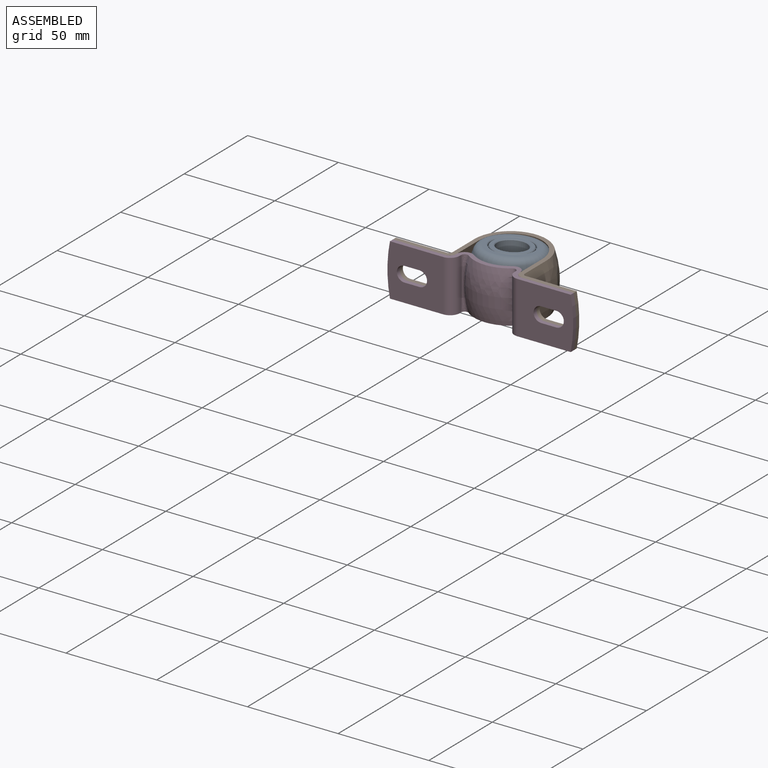
[diagram: assembled view]
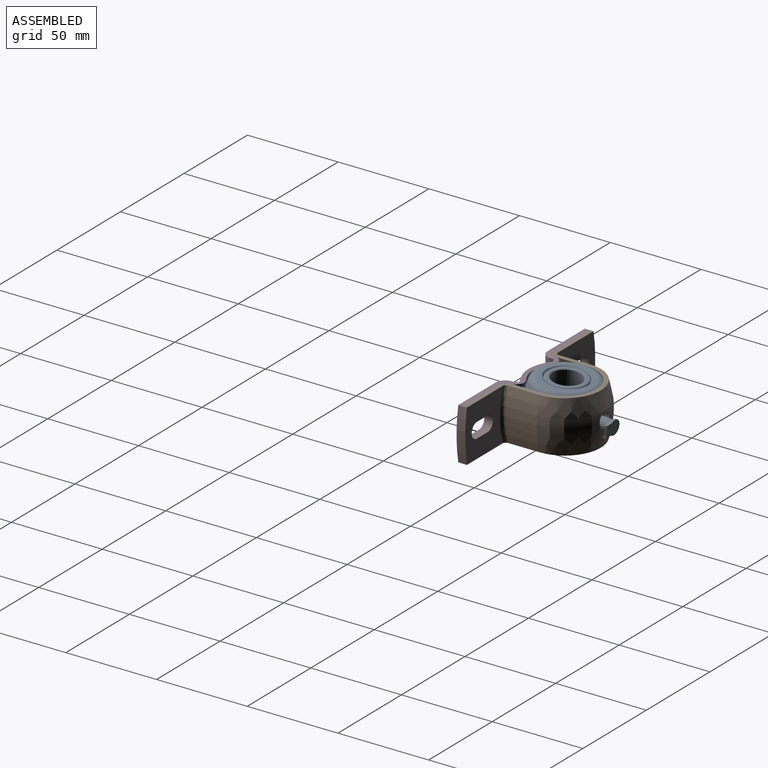
[diagram: assembled view, second angle]
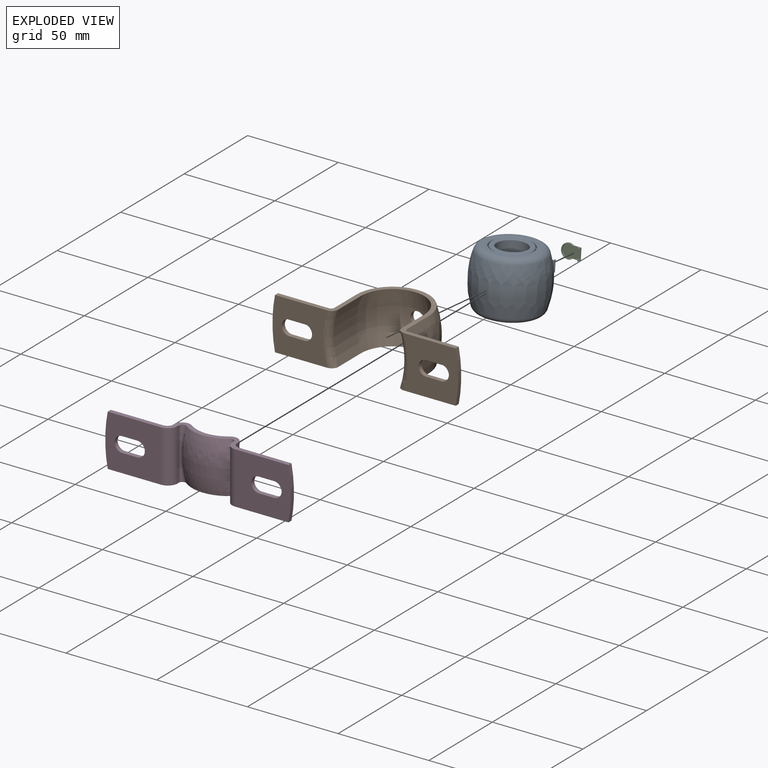
[diagram: exploded view]
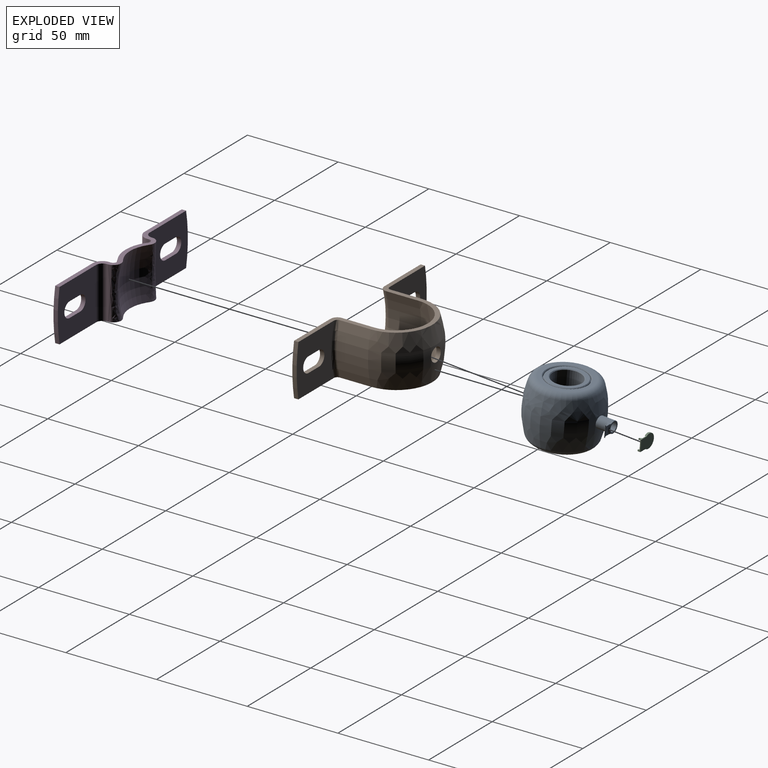
[diagram: exploded view, second angle]
ASSEMBLY  parts=4 mates=3
PART A: 43 faces, bbox 39.3x46.8x31.8 mm
  f0: cone r=10.35mm half-angle=45deg, axis (0,0,-1), area 35.7mm2, adj f8,f16
  f1: cone r=11.11mm half-angle=45deg, axis (0,0,1), area 38.3mm2, adj f9,f20
  f2: cone r=10.73mm half-angle=45deg, axis (0,0,1), area 35.7mm2, adj f14,f17
  f3: cone r=11.49mm half-angle=45deg, axis (0,0,-1), area 38.3mm2, adj f13,f19
  f4: cone r=8.33mm half-angle=45deg, axis (0,0,-1), area 27.6mm2, adj f15,f17
  f5: cone r=7.95mm half-angle=45deg, axis (0,0,1), area 27.6mm2, adj f15,f16
  f6: cylinder r=3.17mm len=7.51mm, axis (0,-1,0), area 135.1mm2, adj f11,f22,f39,f41,f42
  f7: cylinder r=2.41mm len=7.47mm, axis (0,-1,0), area 113.2mm2, adj f22,f23
  f8: cylinder r=10.73mm len=21.47mm, axis (0,0,1), area 77.1mm2, adj f0,f21
  f9: cylinder r=11.11mm len=22.23mm, axis (0,0,1), area 79.8mm2, adj f1,f21
  f10: torus R=13.85mm, axis (0,0,1), area 491.6mm2, adj f11,f20
  f11: revolved ~39.18x39.18mm, area 3148.3mm2, adj f6,f10,f12
  f12: torus R=13.85mm, axis (0,0,1), area 491.6mm2, adj f11,f19
  f13: cylinder r=11.11mm len=22.23mm, axis (0,0,1), area 79.8mm2, adj f3,f18
  f14: cylinder r=10.73mm len=21.47mm, axis (0,0,1), area 77.1mm2, adj f2,f18
  f15: cylinder r=7.95mm len=30.99mm, axis (0,0,1), area 1547.9mm2, adj f4,f5
  f16: plane 20.7x20.7mm, normal (0,0,1), area 118.6mm2, adj f0,f5
  f17: plane 20.7x20.7mm, normal (0,0,-1), area 118.6mm2, adj f2,f4
  f18: plane 22.23x22.23mm, normal (0,0,-1), area 26.1mm2, adj f13,f14
  f19: plane 27.7x27.7mm, normal (0,0,-1), area 187.4mm2, adj f3,f12
  f20: plane 27.7x27.7mm, normal (0,0,1), area 187.4mm2, adj f1,f10
  f21: plane 22.23x22.23mm, normal (0,0,1), area 26.1mm2, adj f8,f9
  f22: plane 6.35x6.35mm, normal (0,1,0), area 13.4mm2, adj f6,f7,f40
  f23: revolved ~4.83x4.83mm, area 18.3mm2, adj f7
  f24: plane 6.35x0.15mm, normal (1,0,0), area 1mm2, adj f25,f32,f37,f38
  f25: plane 0.41x0.41mm, normal (0,0,-1), area 0.2mm2, adj f24,f26,f28,f29,f35,f36,f37,f38
  f26: plane 0.64x0.15mm, normal (-1,0,0), area 0.1mm2, adj f25,f27,f35,f36
  f27: plane 3.54x1.25mm, normal (0,0,-1), area 1.7mm2, adj f26,f28,f29,f35,f36,f40,f41,f42
  f28: plane 6.35x2.76mm, normal (0,1,0), area 11.2mm2, adj f25,f27,f30,f32,f34,f36,f37,f40
  f29: plane 6.35x2.01mm, normal (0,-1,0), area 7.9mm2, adj f25,f27,f30,f32,f33,f35,f38,f41
  f30: plane 3.54x1.25mm, normal (0,0,1), area 1.7mm2, adj f28,f29,f31,f33,f34,f39,f40,f41
  f31: plane 0.64x0.15mm, normal (-1,0,0), area 0.1mm2, adj f30,f32,f33,f34
  f32: plane 0.41x0.41mm, normal (0,0,1), area 0.2mm2, adj f24,f28,f29,f31,f33,f34,f37,f38
  f33: cylinder r=0.13mm len=0.64mm, axis (0,0,1), area 0.1mm2, adj f29,f30,f31,f32
  f34: cylinder r=0.13mm len=0.64mm, axis (0,0,-1), area 0.1mm2, adj f28,f30,f31,f32
  f35: cylinder r=0.13mm len=0.64mm, axis (0,0,1), area 0.1mm2, adj f25,f26,f27,f29
  f36: cylinder r=0.13mm len=0.64mm, axis (0,0,-1), area 0.1mm2, adj f25,f26,f27,f28
  f37: cylinder r=0.13mm len=6.35mm, axis (0,0,1), area 1.3mm2, adj f24,f25,f28,f32
  f38: cylinder r=0.13mm len=6.35mm, axis (0,0,-1), area 1.3mm2, adj f24,f25,f29,f32
  f39: cylinder r=1.52mm len=2.24mm, axis (0,-1,0), area 1.4mm2, adj f6,f30,f40,f41
  f40: torus R=4.09mm, axis (0,1,0), area 5.7mm2, adj f22,f27,f28,f30,f39,f42
  f41: torus R=4.7mm, axis (0,1,0), area 13.8mm2, adj f6,f27,f29,f30,f39,f42
  f42: cylinder r=1.52mm len=2.24mm, axis (0,-1,0), area 1.4mm2, adj f6,f27,f40,f41
PART B: 27 faces, bbox 102.8x44.1x35.7 mm
  f0: cylinder r=3.81mm len=7.62mm, axis (0,-1,0), area 57.2mm2, adj f1,f2
  f1: revolved ~44.45x28.58mm, area 1913.6mm2, adj f0,f3,f4,f5,f6
  f2: revolved ~39.69x28.58mm, area 1695.4mm2, adj f0,f5,f6,f7,f17
  f3: cylinder r=46.04mm len=28.58mm, axis (0,1,0), area 501.6mm2, adj f1,f5,f6,f25
  f4: cylinder r=46.04mm len=28.58mm, axis (0,1,0), area 501.6mm2, adj f1,f5,f6,f15
  f5: plane 100.09x41.83mm, normal (0,0,-1), area 393.1mm2, adj f1,f2,f3,f4,f7,f8,f9,f10
  f6: plane 100.09x41.83mm, normal (0,0,1), area 393.2mm2, adj f1,f2,f3,f4,f7,f8,f9,f10
  f7: cylinder r=43.66mm len=28.58mm, axis (0,1,0), area 519.9mm2, adj f2,f5,f6,f16
  f8: plane 29.99x28.58mm, normal (0,-1,0), area 677.7mm2, adj f5,f6,f10,f11,f12,f13,f14,f16
  f9: plane 29.37x28.58mm, normal (0,1,0), area 660.4mm2, adj f5,f6,f10,f11,f12,f13,f14,f15
  f10: cylinder r=75.01mm len=28.58mm, axis (0,-1,0), area 68.5mm2, adj f5,f6,f8,f9
  f11: cylinder r=4.17mm len=8.33mm, axis (0,-1,0), area 31.2mm2, adj f8,f9,f12,f14
  f12: plane 8.33x2.38mm, normal (0,0,-1), area 19.8mm2, adj f8,f9,f11,f13
  f13: cylinder r=4.17mm len=8.33mm, axis (0,-1,0), area 31.2mm2, adj f8,f9,f12,f14
  f14: plane 8.33x2.38mm, normal (0,0,1), area 19.8mm2, adj f8,f9,f11,f13
  f15: torus R=47.82mm, axis (0,-1,0), area 81.1mm2, adj f4,f5,f6,f9
  f16: torus R=47.23mm, axis (0,-1,0), area 161.5mm2, adj f5,f6,f7,f8
  f17: cylinder r=43.66mm len=28.58mm, axis (0,1,0), area 519.9mm2, adj f2,f5,f6,f26
  f18: plane 29.99x28.58mm, normal (0,-1,0), area 677.7mm2, adj f5,f6,f20,f21,f22,f23,f24,f26
  f19: plane 29.37x28.58mm, normal (0,1,0), area 660.4mm2, adj f5,f6,f20,f21,f22,f23,f24,f25
  f20: cylinder r=75.01mm len=28.58mm, axis (0,-1,0), area 68.5mm2, adj f5,f6,f18,f19
  f21: cylinder r=4.17mm len=8.33mm, axis (0,-1,0), area 31.2mm2, adj f18,f19,f22,f24
  f22: plane 8.33x2.38mm, normal (0,0,1), area 19.8mm2, adj f18,f19,f21,f23
  f23: cylinder r=4.17mm len=8.33mm, axis (0,-1,0), area 31.2mm2, adj f18,f19,f22,f24
  f24: plane 8.33x2.38mm, normal (0,0,-1), area 19.8mm2, adj f18,f19,f21,f23
  f25: torus R=47.82mm, axis (0,-1,0), area 81.1mm2, adj f3,f5,f6,f19
  f26: torus R=47.23mm, axis (0,-1,0), area 161.5mm2, adj f5,f6,f17,f18
PART C: 22 faces, bbox 10.3x1.8x7.9 mm
  f0: cylinder r=0.25mm len=0.51mm, axis (0,0,1), area 0.8mm2, adj f7,f13
  f1: cylinder r=0.25mm len=0.51mm, axis (0,0,-1), area 0.8mm2, adj f9,f12
  f2: cylinder r=3.94mm len=7.87mm, axis (0,-1,0), area 18.1mm2, adj f4,f5,f6,f7,f9,f16,f17,f18
  f3: cylinder r=3.43mm len=6.86mm, axis (0,-1,0), area 7.1mm2, adj f4,f5,f16,f17,f18,f19,f20,f21
  f4: plane 9.83x6.86mm, normal (0,-1,0), area 57.5mm2, adj f2,f3,f7,f8,f9,f10,f12,f13
  f5: plane 7.87x5.87mm, normal (0,-1,0), area 7.2mm2, adj f2,f3,f19,f20
  f6: plane 10.34x7.87mm, normal (0,1,0), area 67.4mm2, adj f2,f7,f8,f9
  f7: plane 4.07x1.78mm, normal (0,0,1), area 3.3mm2, adj f0,f2,f4,f6,f8,f14,f15
  f8: plane 6.35x1.27mm, normal (1,0,0), area 4mm2, adj f4,f6,f7,f9,f11,f12,f13,f14
  f9: plane 4.07x1.78mm, normal (0,0,-1), area 3.3mm2, adj f1,f2,f4,f6,f8,f10,f11
  f10: plane 1.02x0.59mm, normal (-0.87,-0.5,0), area 0.6mm2, adj f4,f9,f11,f12
  f11: cylinder r=0.51mm len=0.95mm, axis (0,0,-1), area 0.7mm2, adj f8,f9,f10,f12
  f12: plane 1.53x1.27mm, normal (0,0,1), area 1.2mm2, adj f1,f4,f8,f10,f11
  f13: plane 1.53x1.27mm, normal (0,0,-1), area 1.2mm2, adj f0,f4,f8,f14,f15
  f14: cylinder r=0.51mm len=0.95mm, axis (0,0,1), area 0.7mm2, adj f7,f8,f13,f15
  f15: plane 1.02x0.59mm, normal (-0.87,-0.5,0), area 0.6mm2, adj f4,f7,f13,f14
  f16: plane 1.03x0.03mm, normal (0,0,1), area 0mm2, adj f2,f3,f20,f21
  f17: plane 1.03x0.03mm, normal (0,0,-1), area 0mm2, adj f2,f3,f18,f19
  f18: cylinder r=0.25mm len=1.34mm, axis (1,0,0), area 0.4mm2, adj f2,f3,f4,f17
  f19: cylinder r=0.25mm len=2.33mm, axis (1,0,0), area 0.6mm2, adj f2,f3,f5,f17
  f20: cylinder r=0.25mm len=2.33mm, axis (-1,0,0), area 0.6mm2, adj f2,f3,f5,f16
  f21: cylinder r=0.25mm len=1.34mm, axis (-1,0,0), area 0.4mm2, adj f2,f3,f4,f16
PART D: 38 faces, bbox 102.4x10.9x29.1 mm
  f0: plane 28.58x0.39mm, normal (1,0,0), area 11.2mm2, adj f1,f3,f12,f19
  f1: plane 34.77x6.35mm, normal (0,0,-1), area 88.8mm2, adj f0,f2,f4,f5,f6,f14,f19,f20
  f2: plane 28.58x0.99mm, normal (-1,0,0), area 28.2mm2, adj f1,f3,f13,f20
  f3: plane 34.77x6.35mm, normal (0,0,1), area 88.8mm2, adj f0,f2,f4,f5,f6,f11,f19,f20
  f4: plane 30.78x28.58mm, normal (0,-1,0), area 742.5mm2, adj f1,f3,f6,f7,f8,f9,f10,f20
  f5: plane 30.19x28.58mm, normal (0,1,0), area 725.5mm2, adj f1,f3,f6,f7,f8,f9,f10,f19
  f6: cylinder r=75.01mm len=28.58mm, axis (0,-1,0), area 68.5mm2, adj f1,f3,f4,f5
  f7: plane 8.33x2.38mm, normal (0,0,1), area 19.8mm2, adj f4,f5,f8,f10
  f8: cylinder r=4.17mm len=8.33mm, axis (0,-1,0), area 31.2mm2, adj f4,f5,f7,f9
  f9: plane 8.33x2.38mm, normal (0,0,-1), area 19.8mm2, adj f4,f5,f8,f10
  f10: cylinder r=4.17mm len=8.33mm, axis (0,-1,0), area 31.2mm2, adj f4,f5,f7,f9
  f11: bspline ~8.16x4.38mm, area 20.2mm2, adj f3,f12,f13,f16
  f12: bspline ~28.86x8.32mm, area 292.4mm2, adj f0,f11,f14,f17
  f13: bspline ~29.15x4.59mm, area 150.2mm2, adj f2,f11,f14,f15
  f14: bspline ~8.16x4.38mm, area 20.2mm2, adj f1,f12,f13,f18
  f15: revolved ~28.58x23.76mm, area 703.3mm2, adj f13,f16,f18,f33
  f16: plane 21.33x5.21mm, normal (0,0,1), area 53mm2, adj f11,f15,f17,f35
  f17: revolved ~28.58x21.21mm, area 625.1mm2, adj f12,f16,f18,f34
  f18: plane 21.33x5.21mm, normal (0,0,-1), area 53mm2, adj f14,f15,f17,f32
  f19: cylinder r=3.57mm len=28.58mm, axis (0,0,-1), area 160.3mm2, adj f0,f1,f3,f5
  f20: cylinder r=5.36mm len=28.58mm, axis (0,0,-1), area 240.5mm2, adj f1,f2,f3,f4
  f21: plane 28.58x0.39mm, normal (-1,0,0), area 11.2mm2, adj f22,f24,f34,f36
  f22: plane 34.77x6.35mm, normal (0,0,-1), area 88.8mm2, adj f21,f23,f25,f26,f27,f32,f36,f37
  f23: plane 28.58x0.99mm, normal (1,0,0), area 28.2mm2, adj f22,f24,f33,f37
  f24: plane 34.77x6.35mm, normal (0,0,1), area 88.8mm2, adj f21,f23,f25,f26,f27,f35,f36,f37
  f25: plane 30.78x28.58mm, normal (0,-1,0), area 742.5mm2, adj f22,f24,f27,f28,f29,f30,f31,f37
  f26: plane 30.19x28.58mm, normal (0,1,0), area 725.5mm2, adj f22,f24,f27,f28,f29,f30,f31,f36
  f27: cylinder r=75.01mm len=28.58mm, axis (0,-1,0), area 68.5mm2, adj f22,f24,f25,f26
  f28: plane 8.33x2.38mm, normal (0,0,1), area 19.8mm2, adj f25,f26,f29,f31
  f29: cylinder r=4.17mm len=8.33mm, axis (0,-1,0), area 31.2mm2, adj f25,f26,f28,f30
  f30: plane 8.33x2.38mm, normal (0,0,-1), area 19.8mm2, adj f25,f26,f29,f31
  f31: cylinder r=4.17mm len=8.33mm, axis (0,-1,0), area 31.2mm2, adj f25,f26,f28,f30
  f32: bspline ~8.16x4.38mm, area 20.2mm2, adj f18,f22,f33,f34
  f33: bspline ~29.15x4.59mm, area 150.2mm2, adj f15,f23,f32,f35
  f34: bspline ~28.86x8.32mm, area 292.4mm2, adj f17,f21,f32,f35
  f35: bspline ~8.16x4.38mm, area 20.2mm2, adj f16,f24,f33,f34
  f36: cylinder r=3.57mm len=28.58mm, axis (0,0,-1), area 160.3mm2, adj f21,f22,f24,f26
  f37: cylinder r=5.36mm len=28.58mm, axis (0,0,-1), area 240.5mm2, adj f22,f23,f24,f25
PLACE A rot(axis=(-1,0,0),4.8deg) t=(0,0,0)mm
PLACE B at identity
PLACE C rot(axis=(-1,0,0),4.8deg) t=(0,-0.25,0.02)mm
PLACE D at identity
MATE fastened C.f2 <-> A.f6  axis (0,-1,0.08) through (0,26.89,-2.27)mm
MATE ball A.f0 <-> B.f1  axis (0,0.08,1) through (0,0,0)mm
MATE fastened D.f26 <-> B.f18  axis (0,1,0) through (-37.7,-21.43,0)mm
